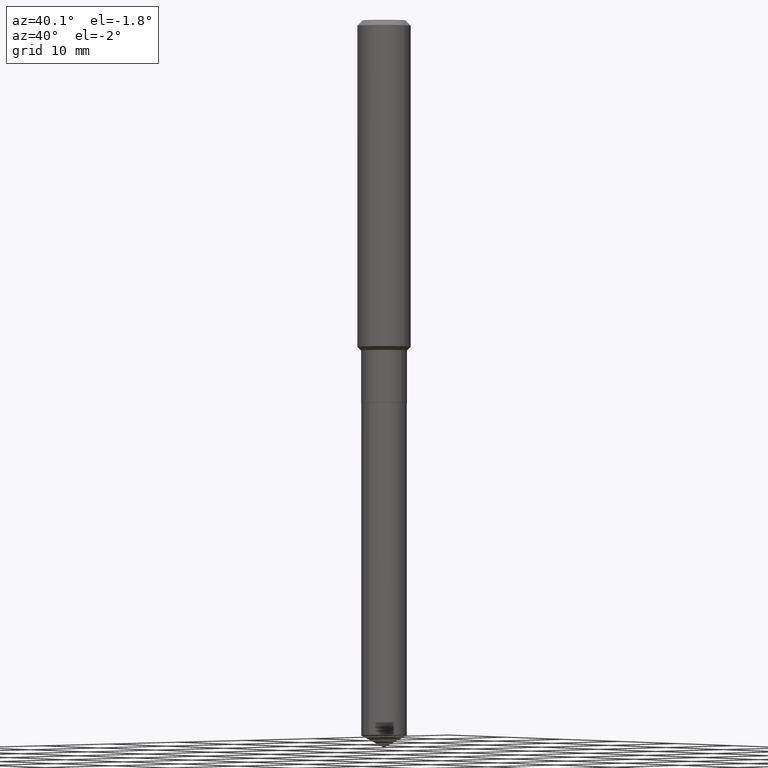
[diagram: clean part render]
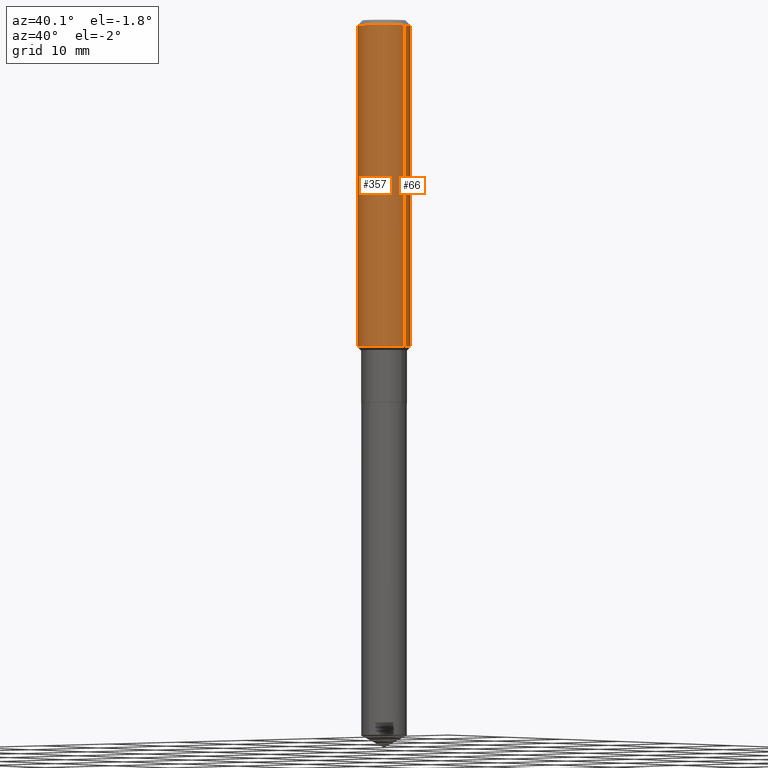
[diagram: same view with one multi-face feature highlighted, each face labeled with its STEP entity id]
A machine part, auxiliary view. The highlighted faces form ONE feature: a constant-radius fillet chain: 2 tangent blend faces with common blend radius 2.9997 mm. The faces share edges in the B-rep.
Their STEP definitions:
[1] entity #357 (Cylinder):
#17 = EDGE_LOOP ( 'NONE', ( #400, #477, #112, #404 ) ) ;
#19 = VECTOR ( 'NONE', #394, 39.37007874015748143 ) ;
#26 = CARTESIAN_POINT ( 'NONE',  ( 0.1181000000000001632, -5.883669778151525797E-15, -1.448950000000000182 ) ) ;
#60 = FACE_OUTER_BOUND ( 'NONE', #17, .T. ) ;
#64 = DIRECTION ( 'NONE',  ( -2.445468806185136597E-29, 3.491481338843145583E-15, 1.000000000000000000 ) ) ;
#109 = LINE ( 'NONE', #212, #171 ) ;
#112 = ORIENTED_EDGE ( 'NONE', *, *, #458, .T. ) ;
#131 = CARTESIAN_POINT ( 'NONE',  ( -0.1180999999999999966, -1.731574366637446524E-15, -0.02362000000000014088 ) ) ;
#164 = DIRECTION ( 'NONE',  ( 1.000000000000000000, -6.982962677686266711E-15, 4.876176775795936353E-29 ) ) ;
#165 = DIRECTION ( 'NONE',  ( 1.000000000000000000, -6.982962677686263555E-15, 0.000000000000000000 ) ) ;
#170 = CARTESIAN_POINT ( 'NONE',  ( 3.543362026721954415E-29, -5.058981885916776746E-15, -1.448950000000000182 ) ) ;
#171 = VECTOR ( 'NONE', #447, 39.37007874015748143 ) ;
#206 = DIRECTION ( 'NONE',  ( -2.445468806185136597E-29, 3.491481338843145583E-15, 1.000000000000000000 ) ) ;
#208 = CIRCLE ( 'NONE', #293, 0.1181000000000001632 ) ;
#209 = CYLINDRICAL_SURFACE ( 'NONE', #475, 0.1181000000000000799 ) ;
#212 = CARTESIAN_POINT ( 'NONE',  ( 0.1181000000000000799, -8.246878922347486570E-16, 5.758764772215004644E-30 ) ) ;
#235 = CIRCLE ( 'NONE', #330, 0.1180999999999999966 ) ;
#242 = CARTESIAN_POINT ( 'NONE',  ( -0.1181000000000000799, 8.391509709326788873E-16, -5.809262341591047988E-30 ) ) ;
#245 = EDGE_CURVE ( 'NONE', #257, #390, #208, .T. ) ;
#256 = CARTESIAN_POINT ( 'NONE',  ( 0.1180999999999999966, -9.071566814582237199E-16, -0.02362000000000014088 ) ) ;
#257 = VERTEX_POINT ( 'NONE', #321 ) ;
#293 = AXIS2_PLACEMENT_3D ( 'NONE', #170, #206, #165 ) ;
#296 = CARTESIAN_POINT ( 'NONE',  ( 5.776197320209327532E-31, -8.246878922347559293E-17, -0.02362000000000014088 ) ) ;
#299 = VERTEX_POINT ( 'NONE', #131 ) ;
#321 = CARTESIAN_POINT ( 'NONE',  ( -0.1181000000000001632, -4.219830914984096182E-15, -1.448950000000000182 ) ) ;
#327 = DIRECTION ( 'NONE',  ( -2.445468806185136597E-29, 3.491481338843145583E-15, 1.000000000000000000 ) ) ;
#330 = AXIS2_PLACEMENT_3D ( 'NONE', #296, #64, #445 ) ;
#346 = EDGE_CURVE ( 'NONE', #257, #299, #392, .T. ) ;
#357 = ADVANCED_FACE ( 'NONE', ( #60 ), #209, .T. ) ;
#363 = CARTESIAN_POINT ( 'NONE',  ( 0.000000000000000000, 0.000000000000000000, 0.000000000000000000 ) ) ;
#390 = VERTEX_POINT ( 'NONE', #26 ) ;
#392 = LINE ( 'NONE', #242, #19 ) ;
#394 = DIRECTION ( 'NONE',  ( -2.445468806185136877E-29, 3.491481338843145188E-15, 1.000000000000000000 ) ) ;
#400 = ORIENTED_EDGE ( 'NONE', *, *, #346, .F. ) ;
#404 = ORIENTED_EDGE ( 'NONE', *, *, #444, .F. ) ;
#430 = VERTEX_POINT ( 'NONE', #256 ) ;
#444 = EDGE_CURVE ( 'NONE', #299, #430, #235, .T. ) ;
#445 = DIRECTION ( 'NONE',  ( 1.000000000000000000, -6.982962677686266711E-15, 0.000000000000000000 ) ) ;
#447 = DIRECTION ( 'NONE',  ( -2.445468806185136877E-29, 3.491481338843145188E-15, 1.000000000000000000 ) ) ;
#458 = EDGE_CURVE ( 'NONE', #390, #430, #109, .T. ) ;
#475 = AXIS2_PLACEMENT_3D ( 'NONE', #363, #327, #164 ) ;
#477 = ORIENTED_EDGE ( 'NONE', *, *, #245, .T. ) ;
[2] entity #66 (Cylinder):
#10 = CIRCLE ( 'NONE', #218, 0.1181000000000001632 ) ;
#19 = VECTOR ( 'NONE', #394, 39.37007874015748143 ) ;
#26 = CARTESIAN_POINT ( 'NONE',  ( 0.1181000000000001632, -5.883669778151525797E-15, -1.448950000000000182 ) ) ;
#49 = DIRECTION ( 'NONE',  ( -2.445468806185136597E-29, 3.491481338843145583E-15, 1.000000000000000000 ) ) ;
#66 = ADVANCED_FACE ( 'NONE', ( #438 ), #211, .T. ) ;
#67 = DIRECTION ( 'NONE',  ( 1.000000000000000000, -6.982962677686266711E-15, 0.000000000000000000 ) ) ;
#72 = ORIENTED_EDGE ( 'NONE', *, *, #458, .F. ) ;
#106 = DIRECTION ( 'NONE',  ( 1.000000000000000000, -6.982962677686266711E-15, 4.876176775795936353E-29 ) ) ;
#109 = LINE ( 'NONE', #212, #171 ) ;
#131 = CARTESIAN_POINT ( 'NONE',  ( -0.1180999999999999966, -1.731574366637446524E-15, -0.02362000000000014088 ) ) ;
#149 = ORIENTED_EDGE ( 'NONE', *, *, #472, .F. ) ;
#169 = AXIS2_PLACEMENT_3D ( 'NONE', #249, #441, #106 ) ;
#171 = VECTOR ( 'NONE', #447, 39.37007874015748143 ) ;
#178 = CIRCLE ( 'NONE', #455, 0.1180999999999999966 ) ;
#187 = ORIENTED_EDGE ( 'NONE', *, *, #234, .T. ) ;
#199 = DIRECTION ( 'NONE',  ( 1.000000000000000000, -6.982962677686263555E-15, 0.000000000000000000 ) ) ;
#204 = CARTESIAN_POINT ( 'NONE',  ( 3.543362026721954415E-29, -5.058981885916776746E-15, -1.448950000000000182 ) ) ;
#211 = CYLINDRICAL_SURFACE ( 'NONE', #169, 0.1181000000000000799 ) ;
#212 = CARTESIAN_POINT ( 'NONE',  ( 0.1181000000000000799, -8.246878922347486570E-16, 5.758764772215004644E-30 ) ) ;
#214 = CARTESIAN_POINT ( 'NONE',  ( 5.776197320209327532E-31, -8.246878922347559293E-17, -0.02362000000000014088 ) ) ;
#218 = AXIS2_PLACEMENT_3D ( 'NONE', #204, #49, #199 ) ;
#228 = EDGE_LOOP ( 'NONE', ( #187, #304, #149, #72 ) ) ;
#234 = EDGE_CURVE ( 'NONE', #390, #257, #10, .T. ) ;
#242 = CARTESIAN_POINT ( 'NONE',  ( -0.1181000000000000799, 8.391509709326788873E-16, -5.809262341591047988E-30 ) ) ;
#249 = CARTESIAN_POINT ( 'NONE',  ( 0.000000000000000000, 0.000000000000000000, 0.000000000000000000 ) ) ;
#256 = CARTESIAN_POINT ( 'NONE',  ( 0.1180999999999999966, -9.071566814582237199E-16, -0.02362000000000014088 ) ) ;
#257 = VERTEX_POINT ( 'NONE', #321 ) ;
#299 = VERTEX_POINT ( 'NONE', #131 ) ;
#304 = ORIENTED_EDGE ( 'NONE', *, *, #346, .T. ) ;
#321 = CARTESIAN_POINT ( 'NONE',  ( -0.1181000000000001632, -4.219830914984096182E-15, -1.448950000000000182 ) ) ;
#346 = EDGE_CURVE ( 'NONE', #257, #299, #392, .T. ) ;
#390 = VERTEX_POINT ( 'NONE', #26 ) ;
#392 = LINE ( 'NONE', #242, #19 ) ;
#394 = DIRECTION ( 'NONE',  ( -2.445468806185136877E-29, 3.491481338843145188E-15, 1.000000000000000000 ) ) ;
#406 = DIRECTION ( 'NONE',  ( -2.445468806185136597E-29, 3.491481338843145583E-15, 1.000000000000000000 ) ) ;
#430 = VERTEX_POINT ( 'NONE', #256 ) ;
#438 = FACE_OUTER_BOUND ( 'NONE', #228, .T. ) ;
#441 = DIRECTION ( 'NONE',  ( -2.445468806185136597E-29, 3.491481338843145583E-15, 1.000000000000000000 ) ) ;
#447 = DIRECTION ( 'NONE',  ( -2.445468806185136877E-29, 3.491481338843145188E-15, 1.000000000000000000 ) ) ;
#455 = AXIS2_PLACEMENT_3D ( 'NONE', #214, #406, #67 ) ;
#458 = EDGE_CURVE ( 'NONE', #390, #430, #109, .T. ) ;
#472 = EDGE_CURVE ( 'NONE', #430, #299, #178, .T. ) ;